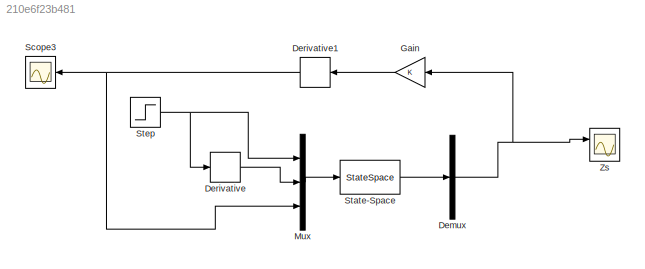
MODEL slx_210e6f23b481
KIND model
CONFIG AbsTol = auto
CONFIG EnableMultiTasking = off
CONFIG FixedStep = auto
CONFIG MaxStep = auto
CONFIG MinStep = auto
CONFIG RelTol = 1e-3
CONFIG SampleTimeConstraint = Unconstrained
CONFIG Solver = VariableStepAuto
CONFIG SolverName = VariableStepAuto
CONFIG StartTime = 0.0
CONFIG StopTime = 10.0
BLOCK [Demux] Demux
  DisplayOption = bar
  Outputs = 1
  Ports = [1, 1]
BLOCK [Derivative] Derivative
BLOCK [Derivative] Derivative1
BLOCK [Gain] Gain
  OutDataTypeStr = Inherit: Inherit via internal rule
  ParamDataTypeStr = Inherit: Inherit via internal rule
  SaturateOnIntegerOverflow = off
BLOCK [Mux] Mux
  DisplayOption = bar
  Inputs = 3
  Ports = [3, 1]
BLOCK [Scope] Scope3
  NumInputPorts = 1
  Ports = [1]
  ScopeSpecificationString = Simulink.scopes.TimeScopeBlockCfg('CurrentConfiguration', extmgr.ConfigurationSet(extmgr.Configuration('Core','General UI',true),extmgr.Configuration('Core','Source UI',true),extmgr.Configuration('Sources','WiredSimulink',true,'DataLoggingVariableName','ScopeData3'),extmgr.Configuration('Visuals','Time Domain',true,'SerializedDisplays',{struct('MinYLimReal','-0.53058','MaxYLimReal','0.58759','YLab...<+1396ch>
BLOCK [StateSpace] State-Space
  A = [0 1 0 0; \n    -ks/ms  0  ks/ms  0;\n    0 0 0 1 ;\n    ks/mp 0 (-ks-kp)/mp -cp1;];
  B = [  0  0 0 ;1/ms  0 0 ; \n0 0 0;\n  1/mp  kp/mp -cp1/mp ;];
  C = [1 0 0 0];
  D = [0 0 0 ] ;
  Ports = [1, 1]
  X0 = 0
BLOCK [Step] Step
  After = 0.05
  SampleTime = 0
BLOCK [Scope] Zs
  NumInputPorts = 2
  Ports = [2]
  ScopeSpecificationString = Simulink.scopes.TimeScopeBlockCfg('CurrentConfiguration', extmgr.ConfigurationSet(extmgr.Configuration('Core','General UI',true,'FigureColor',[1 1 1]),extmgr.Configuration('Core','Source UI',true),extmgr.Configuration('Sources','WiredSimulink',true),extmgr.Configuration('Visuals','Time Domain',true,'SerializedDisplays',{struct('MinYLimReal','-0.18978','MaxYLimReal','1.70798','YLabelReal','','MinYL...<+1499ch>
NET Demux:1 -> Gain:1, Zs:1
NET Derivative1:1 -> Mux:3, Scope3:1
LINE Derivative:1 -> Mux:2
LINE Gain:1 -> Derivative1:1
LINE Mux:1 -> State-Space:1
LINE State-Space:1 -> Demux:1
NET Step:1 -> Derivative:1, Mux:1
note: NET lines group one-source signal fan-out (src -> all destinations, sorted); 1:1 wires keep LINE
